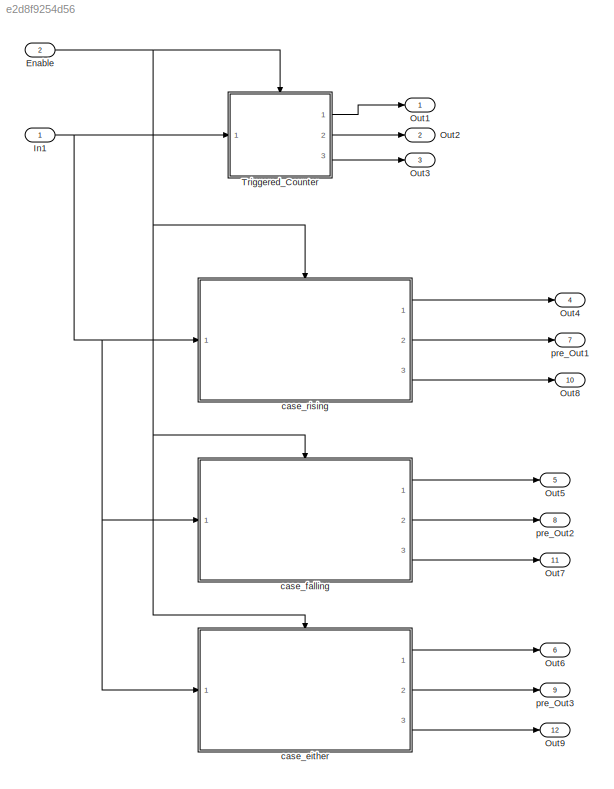
MODEL slx_e2d8f9254d56
KIND model
CONFIG AbsTol = auto
CONFIG EnableMultiTasking = off
CONFIG FixedStep = 0.200000
CONFIG MaxStep = auto
CONFIG MinStep = auto
CONFIG RelTol = 1e-3
CONFIG SampleTimeConstraint = Unconstrained
CONFIG Solver = FixedStepDiscrete
CONFIG SolverName = FixedStepDiscrete
CONFIG StartTime = 0.0
CONFIG StopTime = 10.0
BLOCK [Inport] Enable
  IconDisplay = Port number
  Port = 2
BLOCK [Inport] In1
  IconDisplay = Port number
BLOCK [Outport] Out1
  IconDisplay = Port number
BLOCK [Outport] Out2
  IconDisplay = Port number
  Port = 2
BLOCK [Outport] Out3
  IconDisplay = Port number
  Port = 3
BLOCK [Outport] Out4
  IconDisplay = Port number
  Port = 4
BLOCK [Outport] Out5
  IconDisplay = Port number
  Port = 5
BLOCK [Outport] Out6
  IconDisplay = Port number
  Port = 6
BLOCK [Outport] Out7
  IconDisplay = Port number
  Port = 11
BLOCK [Outport] Out8
  IconDisplay = Port number
  Port = 10
BLOCK [Outport] Out9
  IconDisplay = Port number
  Port = 12
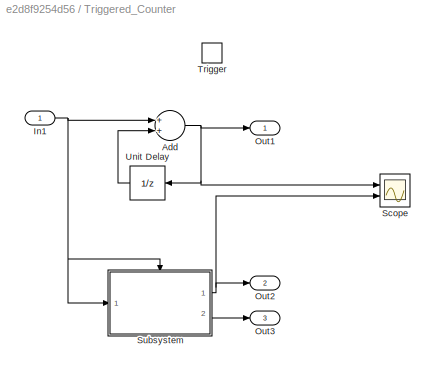
BLOCK [SubSystem] Triggered_Counter
  Ports = [1, 3, 0, 1]
  RequestExecContextInheritance = off
  TreatAsAtomicUnit = on
  Variant = off
BLOCK [Sum] Triggered_Counter/Add
  InputSameDT = off
  OutDataTypeStr = Inherit: Inherit via internal rule
  Ports = [2, 1]
  SaturateOnIntegerOverflow = off
BLOCK [Inport] Triggered_Counter/In1
  IconDisplay = Port number
BLOCK [Outport] Triggered_Counter/Out1
  IconDisplay = Port number
  InitialOutput = 0
  OutputWhenDisabled = reset
BLOCK [Outport] Triggered_Counter/Out2
  IconDisplay = Port number
  Port = 2
BLOCK [Outport] Triggered_Counter/Out3
  IconDisplay = Port number
  Port = 3
BLOCK [Scope] Triggered_Counter/Scope
  NumInputPorts = 2
  Ports = [2]
  ScopeSpecificationString = C++SS(StrPVP('Open','off'),StrPVP('TimeRange','auto'),StrPVP('TickLabels','OneTimeTick'),StrPVP('ShowLegends','off'),StrPVP('LimitDataPoints','off'),StrPVP('MaxDataPoints','5000'),StrPVP('SaveToWorkspace','off'),StrPVP('SaveName','ScopeData2'),StrPVP('YMin','-10.00000~-10.00000'),StrPVP('YMax','10.00000~10.00000'),StrPVP('BlockParamSampleInput','off'),StrPVP('BlockParamSampleTime','-1'),StrPVP('Zo...<+628ch>
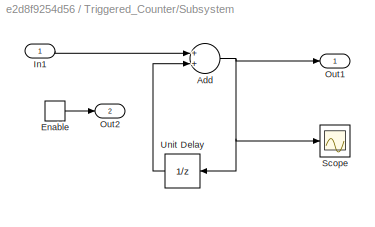
BLOCK [SubSystem] Triggered_Counter/Subsystem
  Ports = [1, 2, 1]
  RequestExecContextInheritance = off
  TreatAsAtomicUnit = on
  Variant = off
BLOCK [Sum] Triggered_Counter/Subsystem/Add
  InputSameDT = off
  OutDataTypeStr = Inherit: Inherit via internal rule
  Ports = [2, 1]
  SaturateOnIntegerOverflow = off
BLOCK [EnablePort] Triggered_Counter/Subsystem/Enable
  Ports = [0, 1]
  ShowOutputPort = on
  StatesWhenEnabling = reset
BLOCK [Inport] Triggered_Counter/Subsystem/In1
  IconDisplay = Port number
BLOCK [Outport] Triggered_Counter/Subsystem/Out1
  IconDisplay = Port number
BLOCK [Outport] Triggered_Counter/Subsystem/Out2
  IconDisplay = Port number
  Port = 2
BLOCK [Scope] Triggered_Counter/Subsystem/Scope
  NumInputPorts = 1
  Ports = [1]
  ScopeSpecificationString = C++SS(StrPVP('Open','off'),StrPVP('TimeRange','auto'),StrPVP('TickLabels','OneTimeTick'),StrPVP('ShowLegends','off'),StrPVP('LimitDataPoints','off'),StrPVP('MaxDataPoints','5000'),StrPVP('SaveToWorkspace','off'),StrPVP('SaveName','ScopeData1'),StrPVP('YMin','0.9'),StrPVP('YMax','1.1'),StrPVP('BlockParamSampleInput','off'),StrPVP('BlockParamSampleTime','-1'),StrPVP('ZoomMode','on'),StrPVP('Grid','o...<+569ch>
BLOCK [UnitDelay] Triggered_Counter/Subsystem/Unit Delay
  InputProcessing = Elements as channels (sample based)
  SampleTime = -1
BLOCK [TriggerPort] Triggered_Counter/Trigger
  PortDimensions = 1
  Ports = []
  StatesWhenEnabling = held
  VariantControl = (inherit)
BLOCK [UnitDelay] Triggered_Counter/Unit Delay
  InputProcessing = Elements as channels (sample based)
  SampleTime = -1
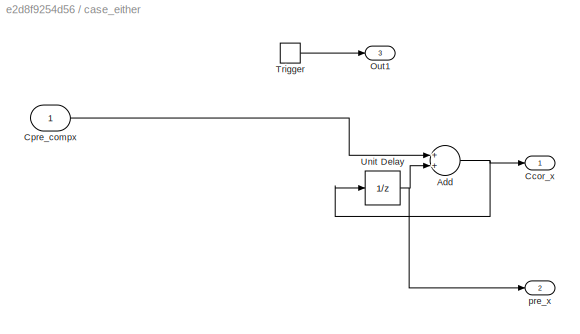
BLOCK [SubSystem] case_either
  Ports = [1, 3, 0, 1]
  RequestExecContextInheritance = off
  TreatAsAtomicUnit = on
  Variant = off
BLOCK [Sum] case_either/Add
  InputSameDT = off
  OutDataTypeStr = Inherit: Inherit via internal rule
  Ports = [2, 1]
  SaturateOnIntegerOverflow = off
BLOCK [Outport] case_either/Ccor_x
  IconDisplay = Port number
  InitialOutput = 0
BLOCK [Inport] case_either/Cpre_compx
  IconDisplay = Port number
  OutDataTypeStr = double
  PortDimensions = [1]
BLOCK [Outport] case_either/Out1
  IconDisplay = Port number
  Port = 3
BLOCK [TriggerPort] case_either/Trigger
  PortDimensions = 1
  Ports = [0, 1]
  ShowOutputPort = on
  StatesWhenEnabling = held
  TriggerType = either
  VariantControl = (inherit)
BLOCK [UnitDelay] case_either/Unit Delay
  InputProcessing = Elements as channels (sample based)
  SampleTime = -1.0000000000000000
BLOCK [Outport] case_either/pre_x
  IconDisplay = Port number
  InitialOutput = 0
  Port = 2
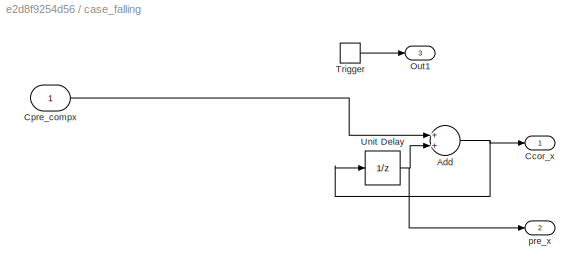
BLOCK [SubSystem] case_falling
  Ports = [1, 3, 0, 1]
  RequestExecContextInheritance = off
  TreatAsAtomicUnit = on
  Variant = off
BLOCK [Sum] case_falling/Add
  InputSameDT = off
  OutDataTypeStr = Inherit: Inherit via internal rule
  Ports = [2, 1]
  SaturateOnIntegerOverflow = off
BLOCK [Outport] case_falling/Ccor_x
  IconDisplay = Port number
  InitialOutput = 0
  OutputWhenDisabled = reset
BLOCK [Inport] case_falling/Cpre_compx
  IconDisplay = Port number
  OutDataTypeStr = double
  PortDimensions = [1]
BLOCK [Outport] case_falling/Out1
  IconDisplay = Port number
  Port = 3
BLOCK [TriggerPort] case_falling/Trigger
  PortDimensions = 1
  Ports = [0, 1]
  ShowOutputPort = on
  StatesWhenEnabling = held
  TriggerType = falling
  VariantControl = (inherit)
BLOCK [UnitDelay] case_falling/Unit Delay
  InputProcessing = Elements as channels (sample based)
  SampleTime = -1.0000000000000000
BLOCK [Outport] case_falling/pre_x
  IconDisplay = Port number
  InitialOutput = 0
  Port = 2
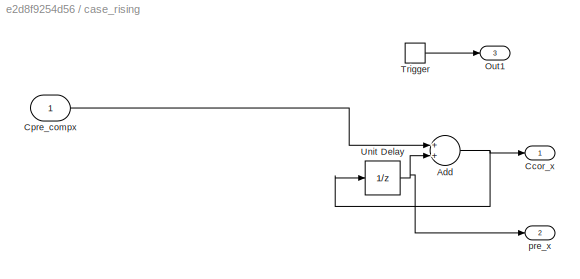
BLOCK [SubSystem] case_rising
  Ports = [1, 3, 0, 1]
  RequestExecContextInheritance = off
  TreatAsAtomicUnit = on
  Variant = off
BLOCK [Sum] case_rising/Add
  InputSameDT = off
  OutDataTypeStr = Inherit: Inherit via internal rule
  Ports = [2, 1]
  SaturateOnIntegerOverflow = off
BLOCK [Outport] case_rising/Ccor_x
  IconDisplay = Port number
  InitialOutput = 0
BLOCK [Inport] case_rising/Cpre_compx
  IconDisplay = Port number
  OutDataTypeStr = double
  PortDimensions = [1]
BLOCK [Outport] case_rising/Out1
  IconDisplay = Port number
  Port = 3
BLOCK [TriggerPort] case_rising/Trigger
  PortDimensions = 1
  Ports = [0, 1]
  ShowOutputPort = on
  StatesWhenEnabling = held
  VariantControl = (inherit)
BLOCK [UnitDelay] case_rising/Unit Delay
  InputProcessing = Elements as channels (sample based)
  SampleTime = -1.0000000000000000
BLOCK [Outport] case_rising/pre_x
  IconDisplay = Port number
  InitialOutput = 0
  Port = 2
BLOCK [Outport] pre_Out1
  IconDisplay = Port number
  Port = 7
BLOCK [Outport] pre_Out2
  IconDisplay = Port number
  Port = 8
BLOCK [Outport] pre_Out3
  IconDisplay = Port number
  Port = 9
NET Enable:1 -> Triggered_Counter:trigger, case_either:trigger, case_falling:trigger, case_rising:trigger
NET In1:1 -> Triggered_Counter:1, case_either:1, case_falling:1, case_rising:1
NET Triggered_Counter/Add:1 -> Triggered_Counter/Out1:1, Triggered_Counter/Scope:1, Triggered_Counter/Unit Delay:1
NET Triggered_Counter/In1:1 -> Triggered_Counter/Add:1, Triggered_Counter/Subsystem:1, Triggered_Counter/Subsystem:enable
NET Triggered_Counter/Subsystem/Add:1 -> Triggered_Counter/Subsystem/Out1:1, Triggered_Counter/Subsystem/Scope:1, Triggered_Counter/Subsystem/Unit Delay:1
LINE Triggered_Counter/Subsystem/Enable:1 -> Triggered_Counter/Subsystem/Out2:1
LINE Triggered_Counter/Subsystem/In1:1 -> Triggered_Counter/Subsystem/Add:1
LINE Triggered_Counter/Subsystem/Unit Delay:1 -> Triggered_Counter/Subsystem/Add:2
NET Triggered_Counter/Subsystem:1 -> Triggered_Counter/Out2:1, Triggered_Counter/Scope:2
LINE Triggered_Counter/Subsystem:2 -> Triggered_Counter/Out3:1
LINE Triggered_Counter/Unit Delay:1 -> Triggered_Counter/Add:2
LINE Triggered_Counter:1 -> Out1:1
LINE Triggered_Counter:2 -> Out2:1
LINE Triggered_Counter:3 -> Out3:1
NET case_either/Add:1 -> case_either/Ccor_x:1, case_either/Unit Delay:1
LINE case_either/Cpre_compx:1 -> case_either/Add:1
LINE case_either/Trigger:1 -> case_either/Out1:1
NET case_either/Unit Delay:1 -> case_either/Add:2, case_either/pre_x:1
LINE case_either:1 -> Out6:1
LINE case_either:2 -> pre_Out3:1
LINE case_either:3 -> Out9:1
NET case_falling/Add:1 -> case_falling/Ccor_x:1, case_falling/Unit Delay:1
LINE case_falling/Cpre_compx:1 -> case_falling/Add:1
LINE case_falling/Trigger:1 -> case_falling/Out1:1
NET case_falling/Unit Delay:1 -> case_falling/Add:2, case_falling/pre_x:1
LINE case_falling:1 -> Out5:1
LINE case_falling:2 -> pre_Out2:1
LINE case_falling:3 -> Out7:1
NET case_rising/Add:1 -> case_rising/Ccor_x:1, case_rising/Unit Delay:1
LINE case_rising/Cpre_compx:1 -> case_rising/Add:1
LINE case_rising/Trigger:1 -> case_rising/Out1:1
NET case_rising/Unit Delay:1 -> case_rising/Add:2, case_rising/pre_x:1
LINE case_rising:1 -> Out4:1
LINE case_rising:2 -> pre_Out1:1
LINE case_rising:3 -> Out8:1
note: NET lines group one-source signal fan-out (src -> all destinations, sorted); 1:1 wires keep LINE
